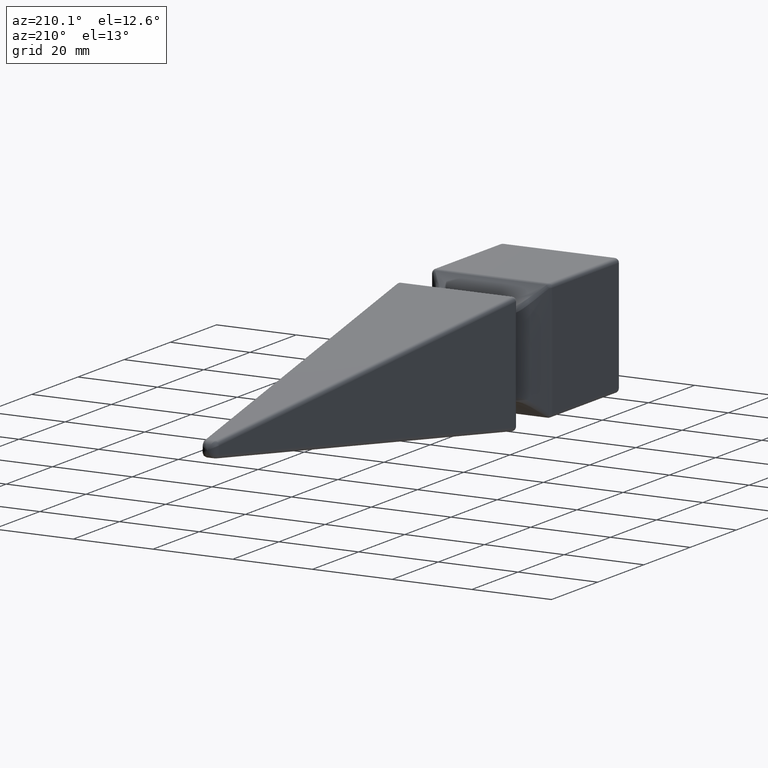
[diagram: clean part render]
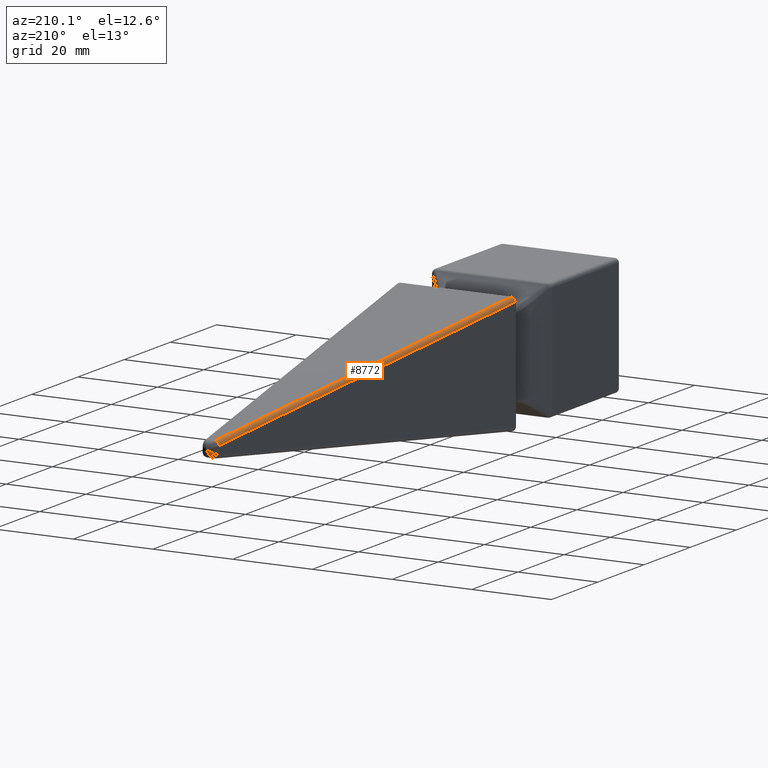
[diagram: same view with one face highlighted and labeled with its STEP entity id]
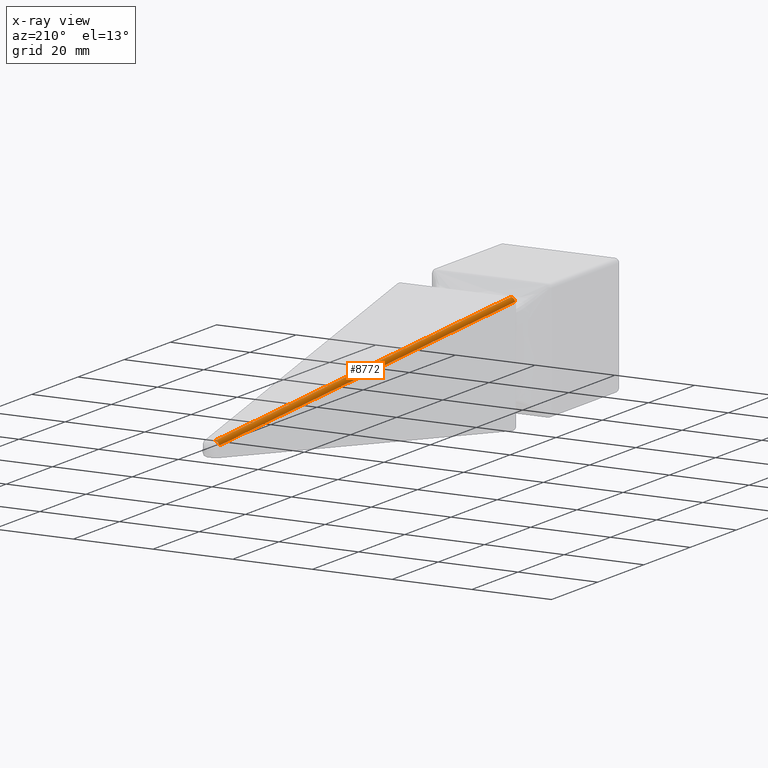
[diagram: x-ray of the same camera — body ghosted, the highlighted face saturated]
A machine part, auxiliary view. The second image highlights one B-rep face of the part: STEP entity #8772.
The next image is the same camera in x-ray: the body ghosted, the highlighted face saturated — about 0% of this face is hidden behind the body in this view.
In plain terms, the highlighted cylindrical surface (edge-blend (fillet) strip) has radius 1 mm, axis along (0.1207, 0.9853, -0.1207).
Its self-contained STEP definition (entity closure, byte-faithful):
#106 = AXIS2_PLACEMENT_3D ( 'NONE', #3169, #3256, #146 ) ;
#146 = DIRECTION ( 'NONE',  ( 0.000000000000000000, -0.1215915408552536991, -0.9925802220437628387 ) ) ;
#345 = EDGE_CURVE ( 'NONE', #3568, #2117, #2499, .T. ) ;
#710 = CARTESIAN_POINT ( 'NONE',  ( -13.94205719625426276, -31.08802147995493925, 13.94205719625426276 ) ) ;
#1534 = AXIS2_PLACEMENT_3D ( 'NONE', #710, #12473, #9558 ) ;
#1610 = LINE ( 'NONE', #8293, #9159 ) ;
#1909 = CARTESIAN_POINT ( 'NONE',  ( -1.999621450378938237, 74.62513450090668243, 1.007041228335173955 ) ) ;
#2117 = VERTEX_POINT ( 'NONE', #9555 ) ;
#2421 = DIRECTION ( 'NONE',  ( -0.1207025510154213083, -0.9853231897995394784, 0.1207025510154212805 ) ) ;
#2499 = CIRCLE ( 'NONE', #1534, 1.000000000000000222 ) ;
#2753 = VERTEX_POINT ( 'NONE', #5144 ) ;
#3169 = CARTESIAN_POINT ( 'NONE',  ( -0.9925802220437599521, 74.62159154085523483, 0.9925802220437610623 ) ) ;
#3256 = DIRECTION ( 'NONE',  ( -0.1207025510154252496, -0.9853231897995387012, 0.1207025510154252496 ) ) ;
#3427 = EDGE_CURVE ( 'NONE', #2753, #2117, #1610, .T. ) ;
#3568 = VERTEX_POINT ( 'NONE', #9801 ) ;
#3646 = CIRCLE ( 'NONE', #106, 1.000000000000000000 ) ;
#3801 = ORIENTED_EDGE ( 'NONE', *, *, #8005, .F. ) ;
#4201 = ORIENTED_EDGE ( 'NONE', *, *, #7015, .T. ) ;
#4251 = DIRECTION ( 'NONE',  ( 0.1207025510154213083, 0.9853231897995395894, -0.1207025510154213083 ) ) ;
#4628 = ORIENTED_EDGE ( 'NONE', *, *, #3427, .F. ) ;
#5144 = CARTESIAN_POINT ( 'NONE',  ( -0.9925802220437599521, 74.74318308171048386, 1.985160444087523457 ) ) ;
#5323 = FACE_OUTER_BOUND ( 'NONE', #7981, .T. ) ;
#7015 = EDGE_CURVE ( 'NONE', #2753, #9281, #3646, .T. ) ;
#7385 = ORIENTED_EDGE ( 'NONE', *, *, #345, .T. ) ;
#7819 = DIRECTION ( 'NONE',  ( 0.1207025510154212805, 0.9853231897995394784, -0.1207025510154213083 ) ) ;
#7981 = EDGE_LOOP ( 'NONE', ( #3801, #7385, #4628, #4201 ) ) ;
#8005 = EDGE_CURVE ( 'NONE', #3568, #9281, #10688, .T. ) ;
#8087 = VECTOR ( 'NONE', #7819, 1000.000000000000114 ) ;
#8188 = DIRECTION ( 'NONE',  ( 0.000000000000000000, 0.1215915408552495497, 0.9925802220437631718 ) ) ;
#8293 = CARTESIAN_POINT ( 'NONE',  ( -14.02188078424764939, -31.61804858080377656, 15.01446100629141078 ) ) ;
#8772 = ADVANCED_FACE ( 'NONE', ( #5323 ), #10229, .T. ) ;
#9159 = VECTOR ( 'NONE', #2421, 1000.000000000000114 ) ;
#9281 = VERTEX_POINT ( 'NONE', #12037 ) ;
#9555 = CARTESIAN_POINT ( 'NONE',  ( -13.94205719625426276, -30.96642993909969022, 14.93463741829802593 ) ) ;
#9558 = DIRECTION ( 'NONE',  ( 0.000000000000000000, 0.1215915408552502019, 0.9925802220437631718 ) ) ;
#9801 = CARTESIAN_POINT ( 'NONE',  ( -14.93463741829803304, -30.96642993909973285, 13.94205719625426809 ) ) ;
#10053 = CARTESIAN_POINT ( 'NONE',  ( -10.05701844245489518, 0.6264596572278471331, 10.05701844245489518 ) ) ;
#10229 = CYLINDRICAL_SURFACE ( 'NONE', #11302, 1.000000000000000222 ) ;
#10688 = LINE ( 'NONE', #1909, #8087 ) ;
#11302 = AXIS2_PLACEMENT_3D ( 'NONE', #10053, #4251, #8188 ) ;
#12037 = CARTESIAN_POINT ( 'NONE',  ( -1.985160444087523457, 74.74318308171048386, 0.9925802220437599521 ) ) ;
#12473 = DIRECTION ( 'NONE',  ( 0.1207025510154213083, 0.9853231897995395894, -0.1207025510154213083 ) ) ;